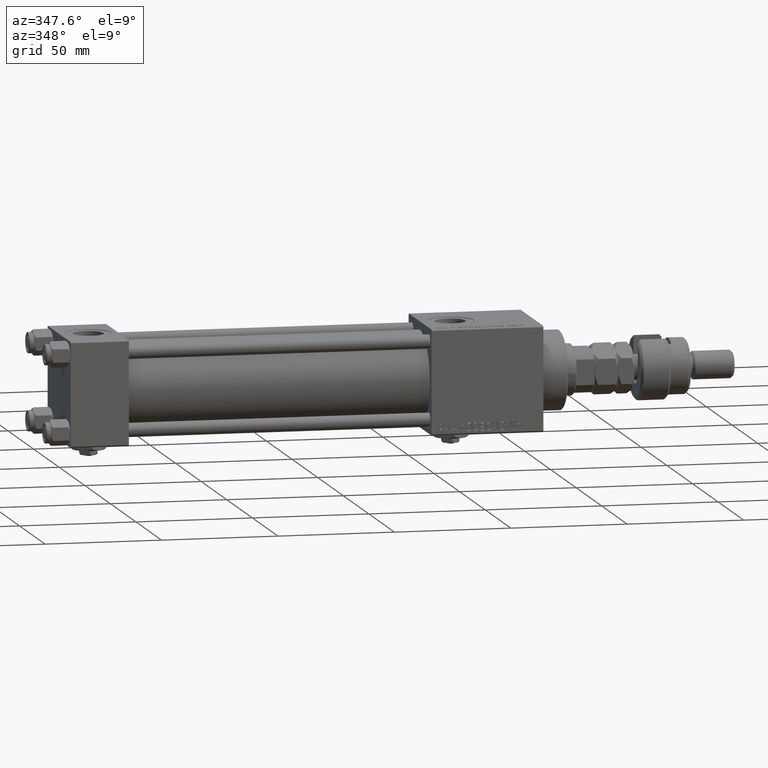
[diagram: clean part render]
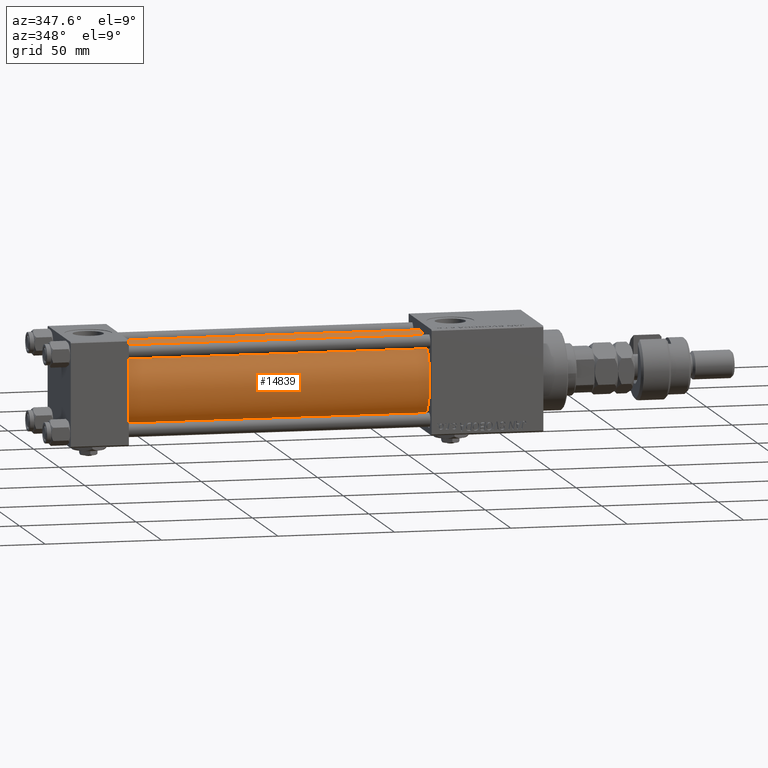
[diagram: same view with one face highlighted and labeled with its STEP entity id]
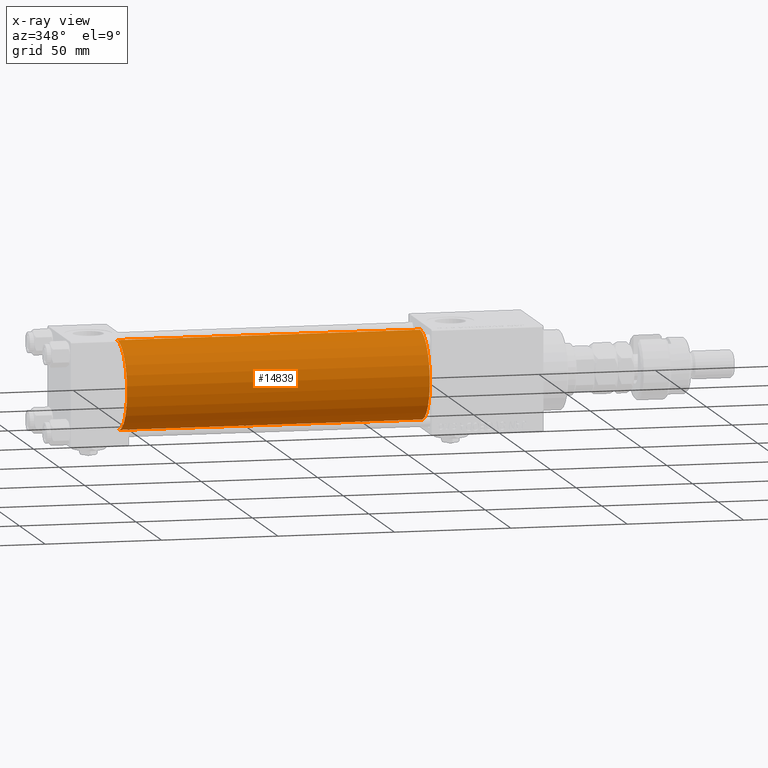
[diagram: x-ray of the same camera — body ghosted, the highlighted face saturated]
A machine part, auxiliary view. The second image highlights one B-rep face of the part: STEP entity #14839.
The next image is the same camera in x-ray: the body ghosted, the highlighted face saturated — about 0% of this face is hidden behind the body in this view.
In plain terms, the highlighted cylindrical surface (partial cylindrical patch) has radius 19 mm, axis along (-1, -0, -0).
Its self-contained STEP definition (entity closure, byte-faithful):
#167 = LINE ( 'NONE', #17203, #47083 ) ;
#362 = DIRECTION ( 'NONE',  ( 0.000000000000000000, 0.000000000000000000, -1.000000000000000000 ) ) ;
#3367 = EDGE_CURVE ( 'NONE', #47950, #25606, #7263, .T. ) ;
#3691 = EDGE_CURVE ( 'NONE', #25606, #41680, #23436, .T. ) ;
#7263 = CIRCLE ( 'NONE', #28677, 19.00000000000000000 ) ;
#7923 = CYLINDRICAL_SURFACE ( 'NONE', #35295, 19.00000000000000000 ) ;
#13643 = ORIENTED_EDGE ( 'NONE', *, *, #3691, .F. ) ;
#14839 = ADVANCED_FACE ( 'NONE', ( #25505 ), #7923, .T. ) ;
#17203 = CARTESIAN_POINT ( 'NONE',  ( 155.0000000000000000, -2.602085213965210642E-15, 19.00000000000000000 ) ) ;
#19430 = EDGE_CURVE ( 'NONE', #32260, #41680, #40782, .T. ) ;
#21310 = CARTESIAN_POINT ( 'NONE',  ( 155.0000000000000000, -2.602085213965210642E-15, 0.000000000000000000 ) ) ;
#22385 = EDGE_CURVE ( 'NONE', #47950, #32260, #167, .T. ) ;
#23055 = CARTESIAN_POINT ( 'NONE',  ( 24.99999999999999289, -2.752562955852396712E-16, -19.00000000000000000 ) ) ;
#23436 = LINE ( 'NONE', #40424, #48232 ) ;
#25505 = FACE_OUTER_BOUND ( 'NONE', #41871, .T. ) ;
#25606 = VERTEX_POINT ( 'NONE', #34490 ) ;
#28677 = AXIS2_PLACEMENT_3D ( 'NONE', #21310, #51137, #362 ) ;
#31001 = AXIS2_PLACEMENT_3D ( 'NONE', #33819, #46667, #38826 ) ;
#32260 = VERTEX_POINT ( 'NONE', #34119 ) ;
#33819 = CARTESIAN_POINT ( 'NONE',  ( 24.99999999999999289, -2.602085213965210642E-15, 0.000000000000000000 ) ) ;
#34119 = CARTESIAN_POINT ( 'NONE',  ( 24.99999999999999289, -2.602085213965210642E-15, 19.00000000000000000 ) ) ;
#34138 = DIRECTION ( 'NONE',  ( -1.000000000000000000, -0.000000000000000000, -0.000000000000000000 ) ) ;
#34490 = CARTESIAN_POINT ( 'NONE',  ( 155.0000000000000000, -2.752562955852396712E-16, -19.00000000000000000 ) ) ;
#34793 = CARTESIAN_POINT ( 'NONE',  ( 155.0000000000000000, -2.602085213965210642E-15, 19.00000000000000000 ) ) ;
#35295 = AXIS2_PLACEMENT_3D ( 'NONE', #38329, #34138, #51151 ) ;
#38329 = CARTESIAN_POINT ( 'NONE',  ( 155.0000000000000000, -2.602085213965210642E-15, 0.000000000000000000 ) ) ;
#38826 = DIRECTION ( 'NONE',  ( 0.000000000000000000, 0.000000000000000000, 1.000000000000000000 ) ) ;
#39326 = ORIENTED_EDGE ( 'NONE', *, *, #3367, .F. ) ;
#40424 = CARTESIAN_POINT ( 'NONE',  ( 155.0000000000000000, -2.752562955852396712E-16, -19.00000000000000000 ) ) ;
#40782 = CIRCLE ( 'NONE', #31001, 19.00000000000000000 ) ;
#41680 = VERTEX_POINT ( 'NONE', #23055 ) ;
#41871 = EDGE_LOOP ( 'NONE', ( #13643, #39326, #48515, #50764 ) ) ;
#46667 = DIRECTION ( 'NONE',  ( 1.000000000000000000, -0.000000000000000000, 0.000000000000000000 ) ) ;
#47083 = VECTOR ( 'NONE', #51210, 1000.000000000000000 ) ;
#47950 = VERTEX_POINT ( 'NONE', #34793 ) ;
#48232 = VECTOR ( 'NONE', #51900, 1000.000000000000000 ) ;
#48515 = ORIENTED_EDGE ( 'NONE', *, *, #22385, .T. ) ;
#50764 = ORIENTED_EDGE ( 'NONE', *, *, #19430, .T. ) ;
#51137 = DIRECTION ( 'NONE',  ( 1.000000000000000000, 0.000000000000000000, 0.000000000000000000 ) ) ;
#51151 = DIRECTION ( 'NONE',  ( 0.000000000000000000, 0.000000000000000000, 1.000000000000000000 ) ) ;
#51210 = DIRECTION ( 'NONE',  ( -1.000000000000000000, -0.000000000000000000, -0.000000000000000000 ) ) ;
#51900 = DIRECTION ( 'NONE',  ( -1.000000000000000000, -0.000000000000000000, -0.000000000000000000 ) ) ;